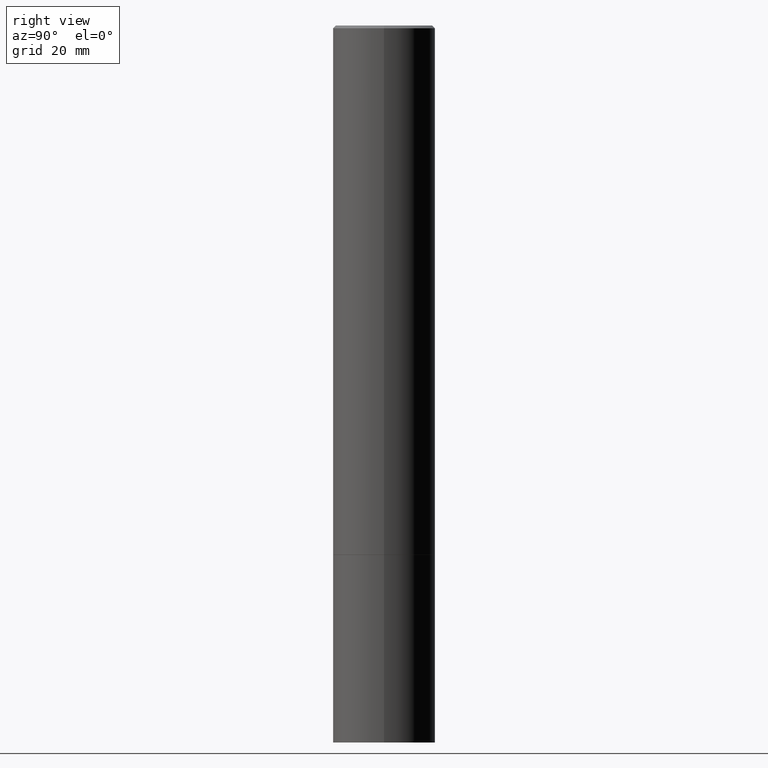
[diagram: clean part render]
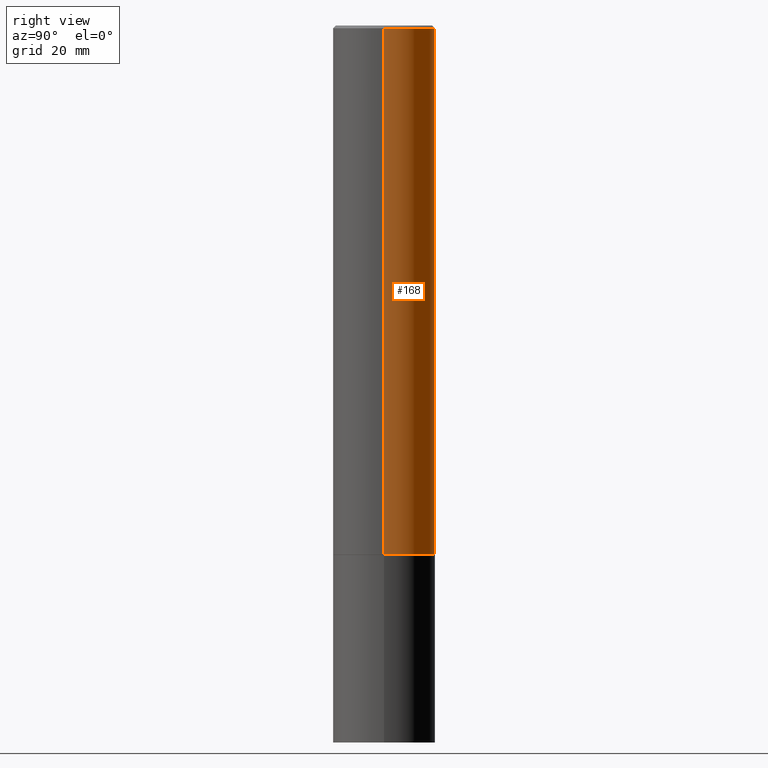
[diagram: same view with one face highlighted and labeled with its STEP entity id]
A machine part, right view. The second image highlights one B-rep face of the part: STEP entity #168.
In plain terms, the highlighted cylindrical surface (partial cylindrical patch) has radius 9.525 mm, axis along (-0, 0, 1).
Its self-contained STEP definition (entity closure, byte-faithful):
#8 = EDGE_CURVE ( 'NONE', #312, #226, #341, .T. ) ;
#23 = CYLINDRICAL_SURFACE ( 'NONE', #72, 0.3749999999999996669 ) ;
#30 = AXIS2_PLACEMENT_3D ( 'NONE', #40, #183, #360 ) ;
#40 = CARTESIAN_POINT ( 'NONE',  ( 9.473746155161219831E-29, -1.352599870667834608E-14, -3.874000000000000110 ) ) ;
#45 = LINE ( 'NONE', #189, #147 ) ;
#72 = AXIS2_PLACEMENT_3D ( 'NONE', #201, #227, #257 ) ;
#79 = AXIS2_PLACEMENT_3D ( 'NONE', #351, #328, #234 ) ;
#86 = CARTESIAN_POINT ( 'NONE',  ( 0.3749999999999996669, -2.618611004132347650E-15, 1.828566290923474241E-29 ) ) ;
#95 = EDGE_LOOP ( 'NONE', ( #272, #280, #283, #245 ) ) ;
#98 = VECTOR ( 'NONE', #290, 39.37007874015748143 ) ;
#100 = EDGE_CURVE ( 'NONE', #226, #169, #45, .T. ) ;
#147 = VECTOR ( 'NONE', #306, 39.37007874015748143 ) ;
#163 = VERTEX_POINT ( 'NONE', #343 ) ;
#168 = ADVANCED_FACE ( 'NONE', ( #287 ), #23, .T. ) ;
#169 = VERTEX_POINT ( 'NONE', #340 ) ;
#172 = CIRCLE ( 'NONE', #79, 0.3749999999999993894 ) ;
#183 = DIRECTION ( 'NONE',  ( -2.445468806185136597E-29, 3.491481338843145583E-15, 1.000000000000000000 ) ) ;
#189 = CARTESIAN_POINT ( 'NONE',  ( -0.3749999999999996669, 2.664535259100373330E-15, -1.844600658845587917E-29 ) ) ;
#201 = CARTESIAN_POINT ( 'NONE',  ( 0.000000000000000000, 0.000000000000000000, 0.000000000000000000 ) ) ;
#208 = LINE ( 'NONE', #86, #98 ) ;
#226 = VERTEX_POINT ( 'NONE', #317 ) ;
#227 = DIRECTION ( 'NONE',  ( -2.445468806185136597E-29, 3.491481338843145583E-15, 1.000000000000000000 ) ) ;
#234 = DIRECTION ( 'NONE',  ( 1.000000000000000000, -6.982962677686266711E-15, 0.000000000000000000 ) ) ;
#245 = ORIENTED_EDGE ( 'NONE', *, *, #319, .F. ) ;
#257 = DIRECTION ( 'NONE',  ( 1.000000000000000000, -6.982962677686266711E-15, 4.876176775795935793E-29 ) ) ;
#272 = ORIENTED_EDGE ( 'NONE', *, *, #8, .T. ) ;
#280 = ORIENTED_EDGE ( 'NONE', *, *, #100, .T. ) ;
#282 = EDGE_CURVE ( 'NONE', #163, #169, #172, .T. ) ;
#283 = ORIENTED_EDGE ( 'NONE', *, *, #282, .F. ) ;
#287 = FACE_OUTER_BOUND ( 'NONE', #95, .T. ) ;
#290 = DIRECTION ( 'NONE',  ( -2.445468806185136877E-29, 3.491481338843145188E-15, 1.000000000000000000 ) ) ;
#306 = DIRECTION ( 'NONE',  ( -2.445468806185136877E-29, 3.491481338843145188E-15, 1.000000000000000000 ) ) ;
#312 = VERTEX_POINT ( 'NONE', #325 ) ;
#317 = CARTESIAN_POINT ( 'NONE',  ( -0.3749999999999999445, -4.133378907627225046E-15, -3.874000000000000110 ) ) ;
#319 = EDGE_CURVE ( 'NONE', #312, #163, #208, .T. ) ;
#325 = CARTESIAN_POINT ( 'NONE',  ( 0.3749999999999999445, -1.614460971081069609E-14, -3.874000000000000110 ) ) ;
#328 = DIRECTION ( 'NONE',  ( -2.445468806185136597E-29, 3.491481338843145583E-15, 1.000000000000000000 ) ) ;
#340 = CARTESIAN_POINT ( 'NONE',  ( -0.3749999999999993894, 2.548781377355482380E-15, -0.02000000000000008715 ) ) ;
#341 = CIRCLE ( 'NONE', #30, 0.3749999999999999445 ) ;
#343 = CARTESIAN_POINT ( 'NONE',  ( 0.3749999999999993894, -2.642516375941183690E-15, -0.02000000000000008715 ) ) ;
#351 = CARTESIAN_POINT ( 'NONE',  ( 4.890937612370294178E-31, -6.982962677686321191E-17, -0.02000000000000008715 ) ) ;
#360 = DIRECTION ( 'NONE',  ( 1.000000000000000000, -6.982962677686269077E-15, 0.000000000000000000 ) ) ;